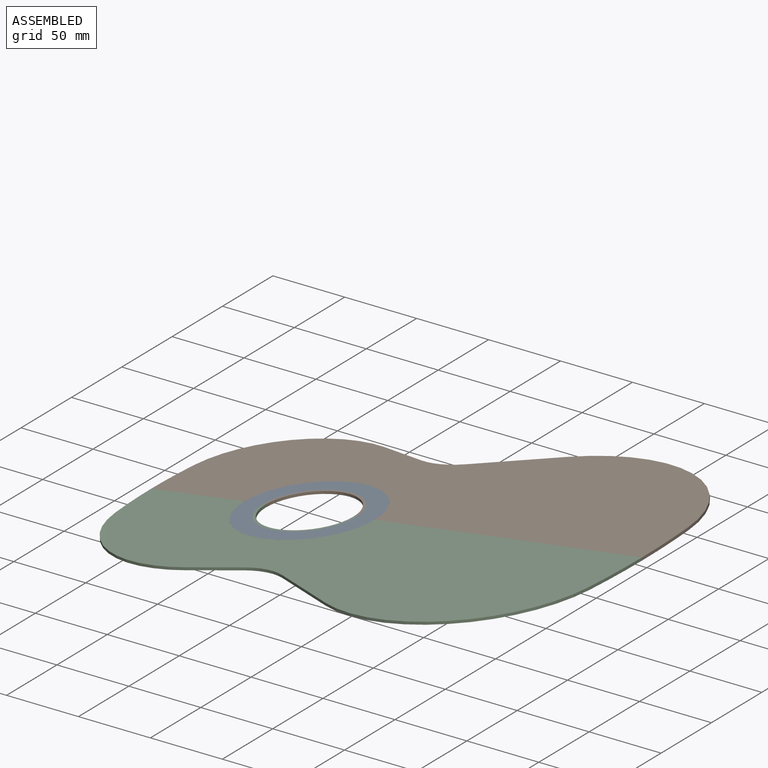
[diagram: assembled view]
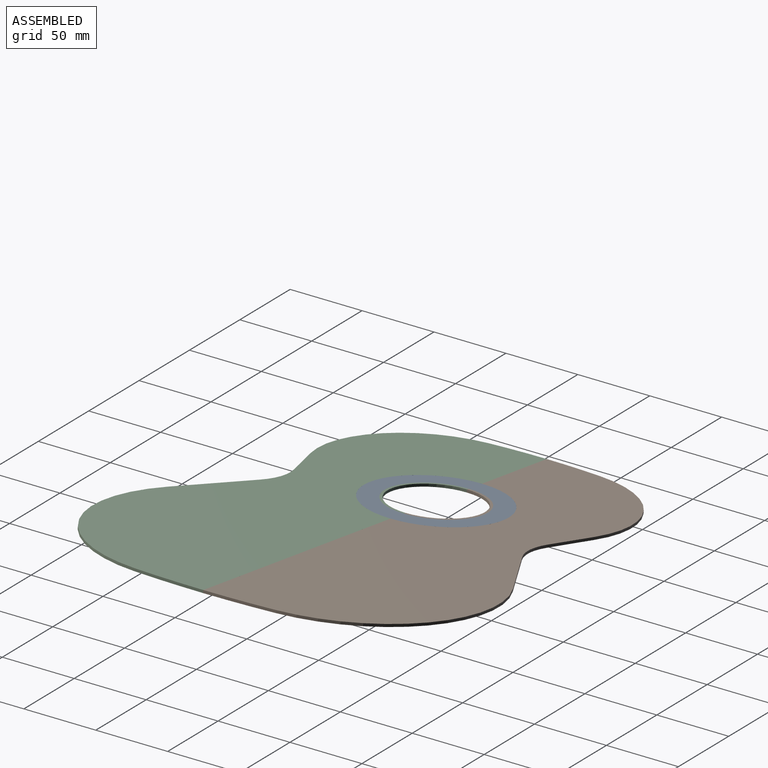
[diagram: assembled view, second angle]
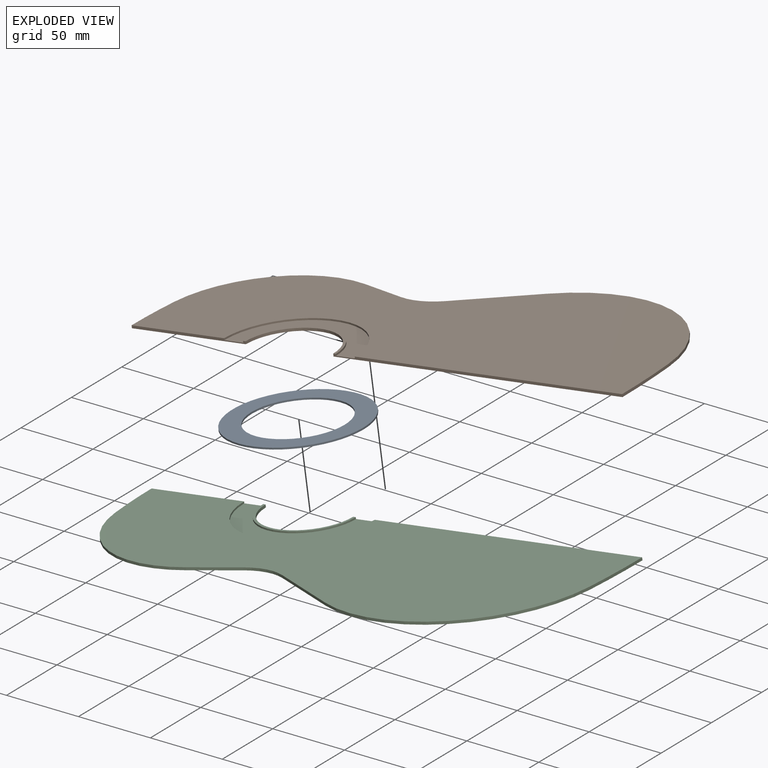
[diagram: exploded view]
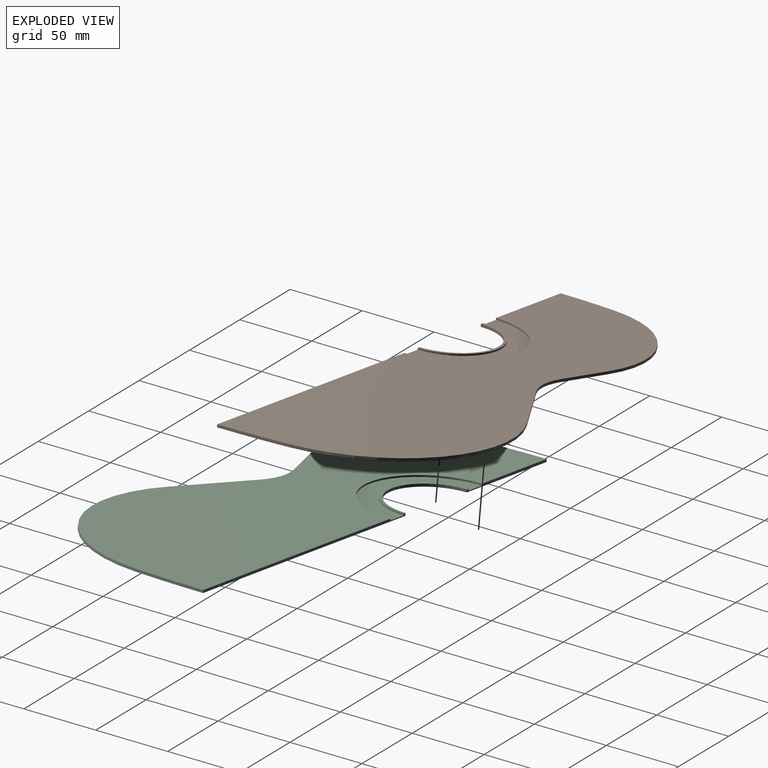
[diagram: exploded view, second angle]
ASSEMBLY  parts=3 mates=2
PART A: 4 faces, bbox 91x91.7x13.9 mm
  f0: plane 91.7x90.81mm, normal (0.14,0,-0.99), area 3273.7mm2, adj f1,f2
  f1: cylinder r=32.56mm len=65.12mm, axis (-0.14,0,0.99), area 234.3mm2, adj f0,f3
  f2: cylinder r=45.85mm len=91.7mm, axis (-0.14,0,0.99), area 329.9mm2, adj f0,f3
  f3: plane 91.7x90.81mm, normal (-0.14,0,0.99), area 3273.7mm2, adj f1,f2
PART B: 16 faces, bbox 341.3x131.8x49.7 mm
  f0: plane 64.49x32.56mm, normal (-0.14,0,0.99), area 178.7mm2, adj f3,f4,f5,f15
  f1: cylinder r=70.43mm len=91.13mm, axis (0.14,0,-0.99), area 227.4mm2, adj f2,f10,f11,f12
  f2: cylinder r=363.52mm len=39.45mm, axis (0.14,0,-0.99), area 71.9mm2, adj f1,f3,f11,f12
  f3: plane 79.5x12.94mm, normal (0,-1,0), area 130.2mm2, adj f0,f2,f4,f11,f12,f13,f14,f15
  f4: cylinder r=30.76mm len=61.18mm, axis (0.14,0,-0.99), area 175.7mm2, adj f0,f3,f5,f12
  f5: plane 201.11x30.03mm, normal (0,-1,0), area 353.4mm2, adj f0,f4,f6,f11,f12,f13,f14,f15
  f6: cylinder r=545.29mm len=49.08mm, axis (0.14,0,-0.99), area 89.3mm2, adj f5,f7,f11,f12
  f7: cylinder r=90.88mm len=134.34mm, axis (0.14,0,-0.99), area 329.9mm2, adj f6,f8,f11,f12
  f8: plane 50.51x28.83mm, normal (-0.49,0.87,-0.07), area 106.1mm2, adj f7,f9,f11,f12
  f9: cylinder r=36.35mm len=29.15mm, axis (0.14,0,-0.99), area 54.9mm2, adj f8,f10,f11,f12
  f10: plane 32.85x10.69mm, normal (0.31,0.95,0.04), area 62.9mm2, adj f1,f9,f11,f12
  f11: plane 341.03x131.78mm, normal (-0.14,0,0.99), area 32060.8mm2, adj f1,f2,f3,f5,f6,f7,f8,f9
  f12: plane 341.03x131.78mm, normal (0.14,0,-0.99), area 33876.4mm2, adj f1,f2,f3,f4,f5,f6,f7,f8
  f13: plane 90.81x45.85mm, normal (-0.14,0,0.99), area 1636.8mm2, adj f3,f5,f14,f15
  f14: cylinder r=45.85mm len=90.97mm, axis (-0.14,0,0.99), area 164.9mm2, adj f3,f5,f11,f13
  f15: cylinder r=32.56mm len=64.65mm, axis (-0.14,0,0.99), area 117.1mm2, adj f0,f3,f5,f13
PART C: 16 faces, bbox 341.3x131.8x49.7 mm
  f0: plane 64.49x32.56mm, normal (-0.14,0,0.99), area 178.7mm2, adj f1,f2,f3,f14
  f1: plane 201.11x30.03mm, normal (0,1,0), area 353.4mm2, adj f0,f2,f10,f11,f12,f13,f14,f15
  f2: cylinder r=30.76mm len=61.18mm, axis (0.14,0,-0.99), area 175.7mm2, adj f0,f1,f3,f12
  f3: plane 79.5x12.94mm, normal (0,1,0), area 130.2mm2, adj f0,f2,f4,f11,f12,f13,f14,f15
  f4: cylinder r=363.52mm len=39.45mm, axis (0.14,0,-0.99), area 71.9mm2, adj f3,f5,f11,f12
  f5: cylinder r=70.43mm len=91.13mm, axis (0.14,0,-0.99), area 227.4mm2, adj f4,f6,f11,f12
  f6: plane 32.85x10.69mm, normal (0.31,-0.95,0.04), area 62.9mm2, adj f5,f7,f11,f12
  f7: cylinder r=36.35mm len=29.15mm, axis (0.14,0,-0.99), area 54.9mm2, adj f6,f8,f11,f12
  f8: plane 50.51x28.83mm, normal (-0.49,-0.87,-0.07), area 106.1mm2, adj f7,f9,f11,f12
  f9: cylinder r=90.88mm len=134.34mm, axis (0.14,0,-0.99), area 329.9mm2, adj f8,f10,f11,f12
  f10: cylinder r=545.29mm len=49.08mm, axis (0.14,0,-0.99), area 89.3mm2, adj f1,f9,f11,f12
  f11: plane 341.03x131.78mm, normal (-0.14,0,0.99), area 32060.8mm2, adj f1,f3,f4,f5,f6,f7,f8,f9
  f12: plane 341.03x131.78mm, normal (0.14,0,-0.99), area 33876.4mm2, adj f1,f2,f3,f4,f5,f6,f7,f8
  f13: cylinder r=45.85mm len=90.97mm, axis (-0.14,0,0.99), area 164.9mm2, adj f1,f3,f11,f15
  f14: cylinder r=32.56mm len=64.65mm, axis (-0.14,0,0.99), area 117.1mm2, adj f0,f1,f3,f15
  f15: plane 90.81x45.85mm, normal (-0.14,0,0.99), area 1636.8mm2, adj f1,f3,f13,f14
PLACE A t=(-160.7,-88.91,13.98)mm
PLACE B t=(-160.7,-88.91,13.98)mm
PLACE C t=(-160.7,-88.91,13.98)mm
MATE fastened B.f11 <-> C.f11  axis (-0.14,0,0.99) through (-26.86,-88.91,69.06)mm
MATE fastened A.f1 <-> C.f2  axis (-0.14,0,0.99) through (-72.27,-88.91,62.68)mm
